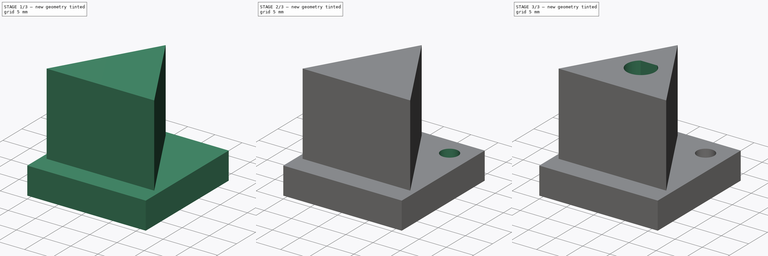
[diagram: build sequence overview — one tinted view per stage of 3, left to right]
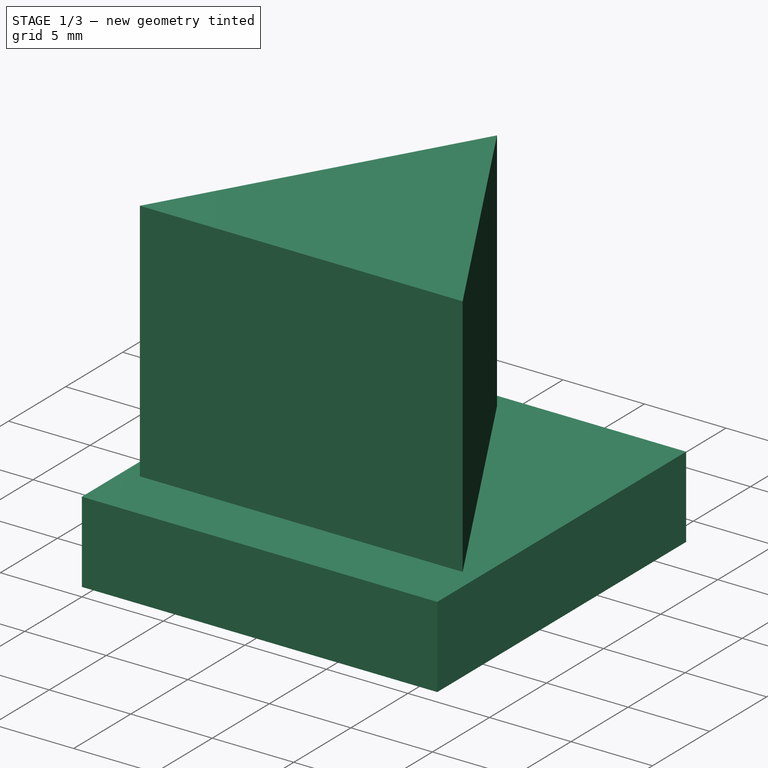
[diagram: stage 1 of 3 — iso view after this stage's code; geometry added in this stage tinted green]
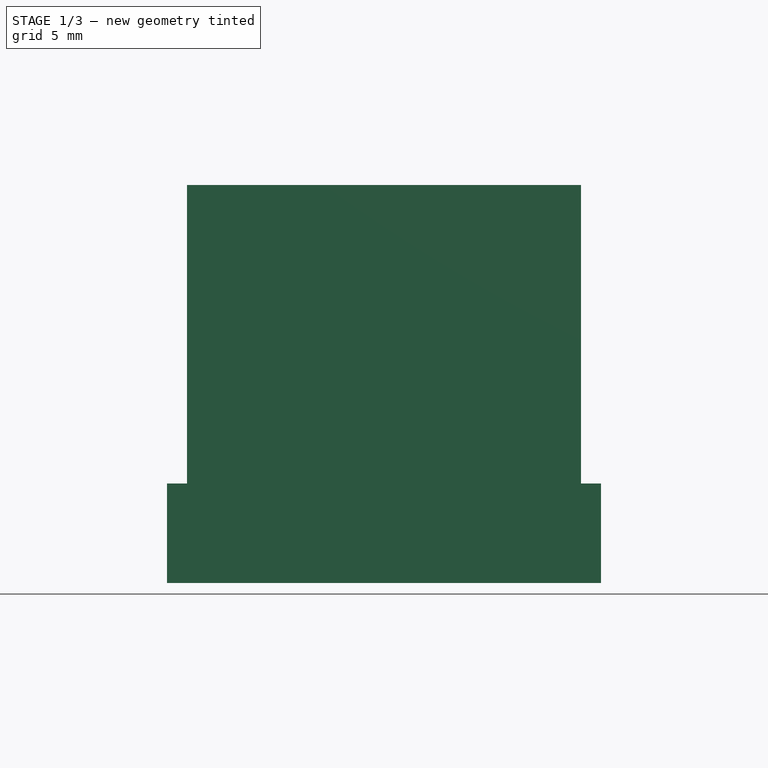
[diagram: stage 1 of 3 — front view after this stage's code; geometry added in this stage tinted green]
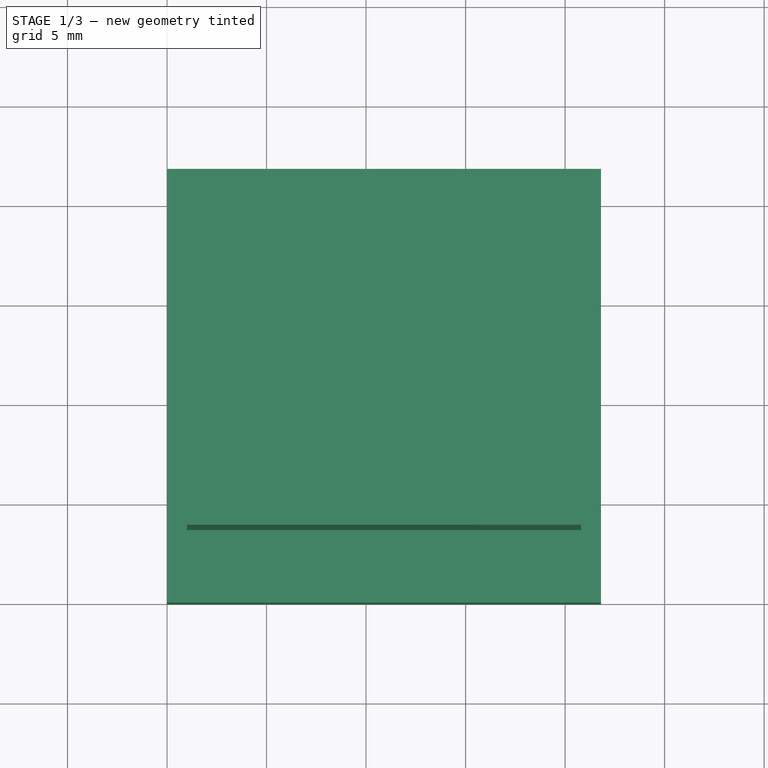
[diagram: stage 1 of 3 — top view after this stage's code; geometry added in this stage tinted green]
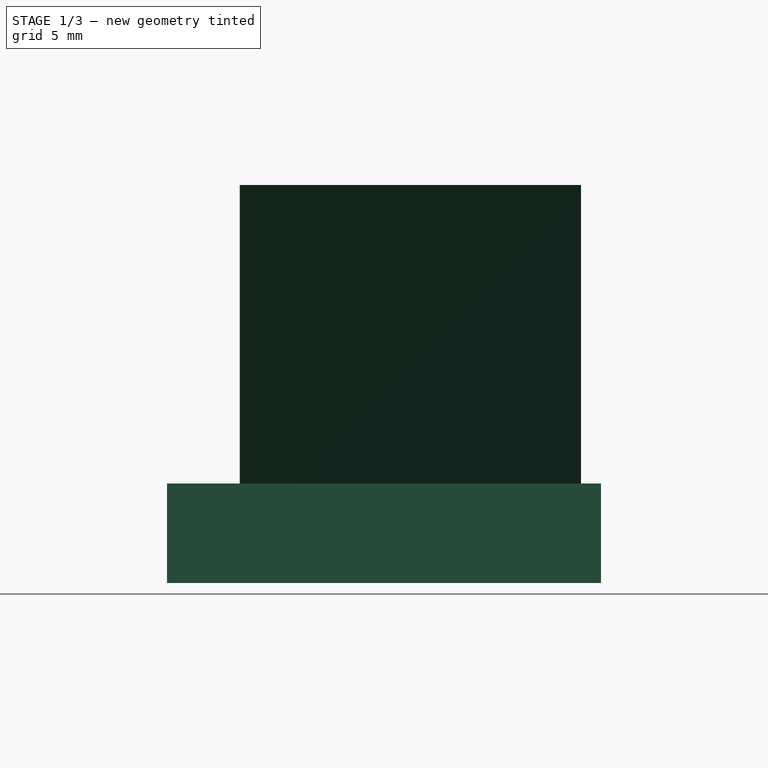
[diagram: stage 1 of 3 — right view after this stage's code; geometry added in this stage tinted green]
FCSTD DOCUMENT  (FreeCAD 0.17R13541 (Git))
Label: hub_v1
License: All rights reserved
LicenseURL: http://en.wikipedia.org/wiki/All_rights_reserved
objects: Sketcher::SketchObject×5, PartDesign::Pocket×3, PartDesign::Pad×2, PartDesign::Body×1
note: 16 computed .brp shape members not serialized (recipe doc carries the construction recipe); baked Part::Feature solids carry a one-line shape summary decoded from their .brp

FEATURE [Sketcher::SketchObject] Sketch
  MapMode = 5
  Support = -> [XY_Plane]
  sketch-geometry (4):
    g0: LineSegment StartX=0 StartY=21.8 StartZ=0 EndX=21.8 EndY=21.8 EndZ=0
    g1: LineSegment StartX=21.8 StartY=21.8 StartZ=0 EndX=21.8 EndY=0 EndZ=0
    g2: LineSegment StartX=21.8 StartY=0 StartZ=0 EndX=0 EndY=0 EndZ=0
    g3: LineSegment StartX=0 StartY=0 StartZ=0 EndX=0 EndY=21.8 EndZ=0
  constraints (11):
    c: Coincident(g0,g1)
    c: Coincident(g1,g2)
    c: Coincident(g2,g3)
    c: Coincident(g3,g0)
    c: Horizontal(g0)
    c: Horizontal(g2)
    c: Vertical(g1)
    c: Vertical(g3)
    c: Equal(g2,g1)
    c: Coincident(g2,g-1)
    c: DistanceY(g1,g1) = 21.8
FEATURE [PartDesign::Pad] Pad
  Length = 5
  Length2 = 100
  Profile = -> Sketch
  Type = 0
FEATURE [Sketcher::SketchObject] Sketch001
  MapMode = 5
  Placement = pos=(0,0,5) rot=(0,0,1;0rad)
  Support = -> [Pad]
  sketch-geometry (3):
    g0: LineSegment StartX=1 StartY=3.6527 StartZ=0 EndX=10.9 EndY=20.8 EndZ=0
    g1: LineSegment StartX=10.9 StartY=20.8 StartZ=0 EndX=20.8 EndY=3.6527 EndZ=0
    g2: LineSegment StartX=20.8 StartY=3.6527 StartZ=0 EndX=1 EndY=3.6527 EndZ=0
  constraints (9):
    c: Coincident(g0,g1)
    c: Coincident(g1,g2)
    c: Coincident(g2,g0)
    c: Horizontal(g2)
    c: Equal(g2,g0)
    c: Equal(g0,g1)
    c: DistanceX(g2,g2) = 19.8
    c: DistanceX(g-1,g0) = 1
    c: DistanceY(g-1,g0) = 20.8
FEATURE [PartDesign::Pad] Pad001
  BaseFeature = -> Pad
  Length = 15
  Length2 = 100
  Profile = -> Sketch001
  Type = 0
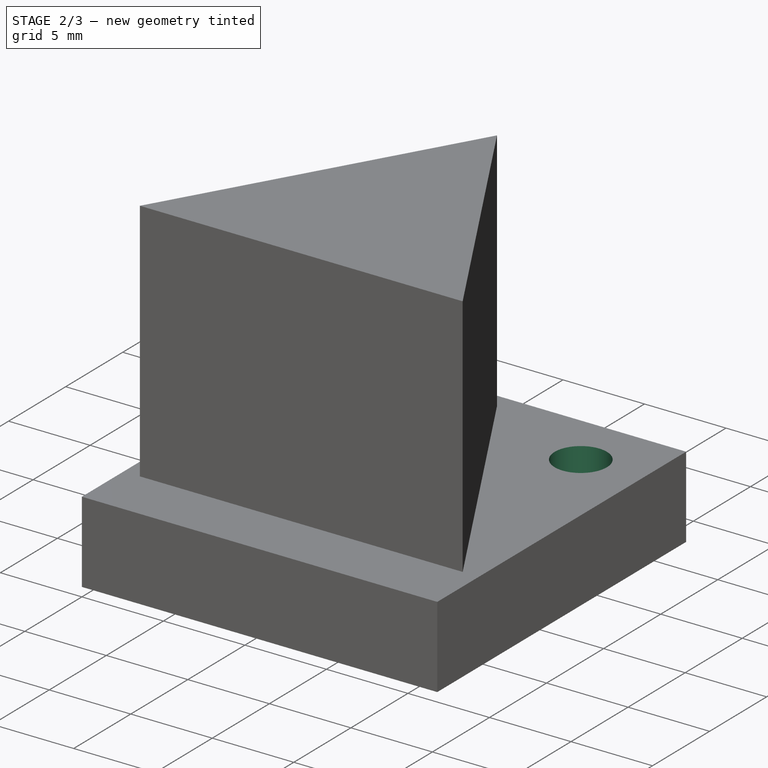
[diagram: stage 2 of 3 — iso view after this stage's code; geometry added in this stage tinted green]
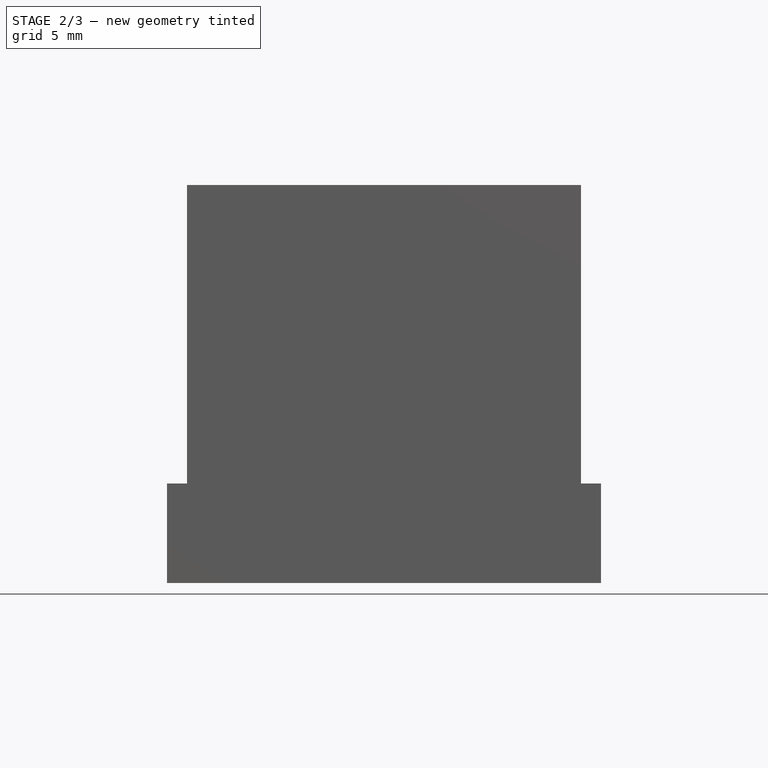
[diagram: stage 2 of 3 — front view after this stage's code; geometry added in this stage tinted green]
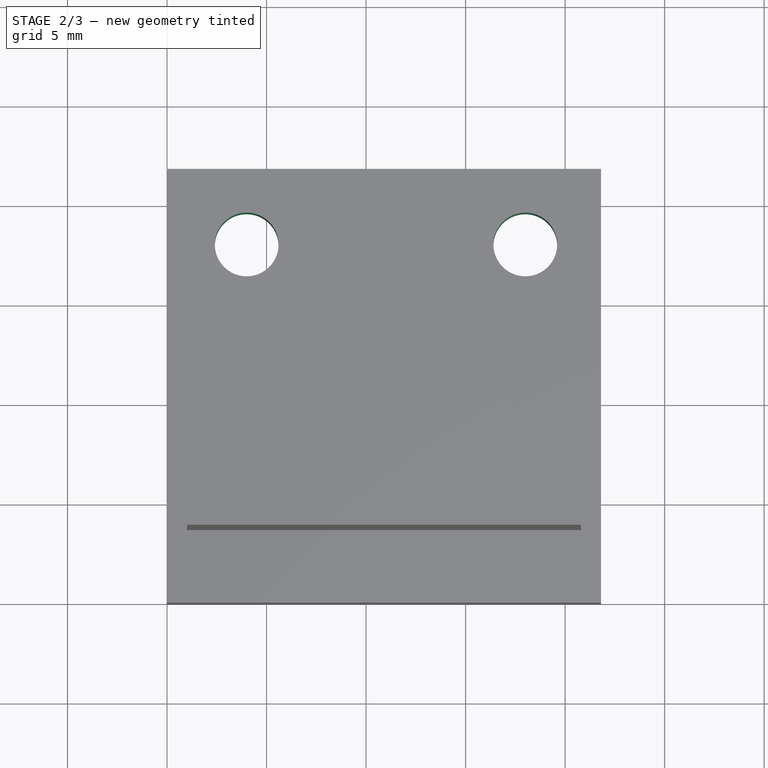
[diagram: stage 2 of 3 — top view after this stage's code; geometry added in this stage tinted green]
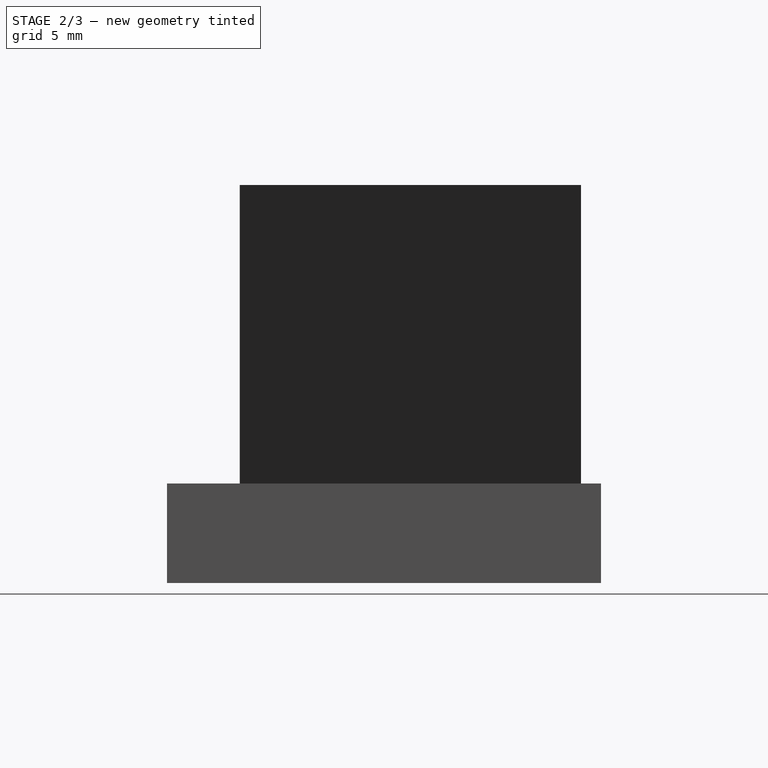
[diagram: stage 2 of 3 — right view after this stage's code; geometry added in this stage tinted green]
FEATURE [Sketcher::SketchObject] Sketch002
  MapMode = 5
  Placement = pos=(0,0,0) rot=(1,0,0;3.14159rad)
  Support = -> [Pad001]
  sketch-geometry (2):
    g0: Circle CenterX=4 CenterY=-18 CenterZ=0 NormalX=0 NormalY=0 NormalZ=1 AngleXU=0 Radius=1.6
    g1: Circle CenterX=18 CenterY=-18 CenterZ=0 NormalX=0 NormalY=0 NormalZ=1 AngleXU=0 Radius=1.6
  constraints (6):
    c: Horizontal(g0,g1)
    c: DistanceX(g0,g1) = 14
    c: DistanceX(g-1,g0) = 4
    c: DistanceY(g0,g-1) = 18
    c: Equal(g0,g1)
    c: Radius(g1) = 1.6
FEATURE [PartDesign::Pocket] Pocket
  BaseFeature = -> Pad001
  Length = 5
  Length2 = 100
  Profile = -> Sketch002
  Type = 1
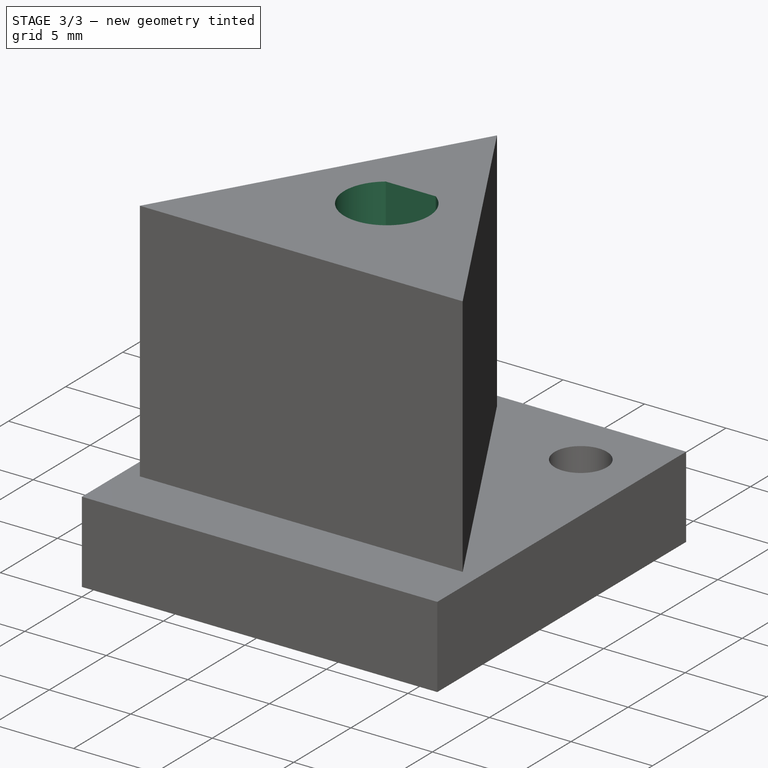
[diagram: stage 3 of 3 — iso view after this stage's code; geometry added in this stage tinted green]
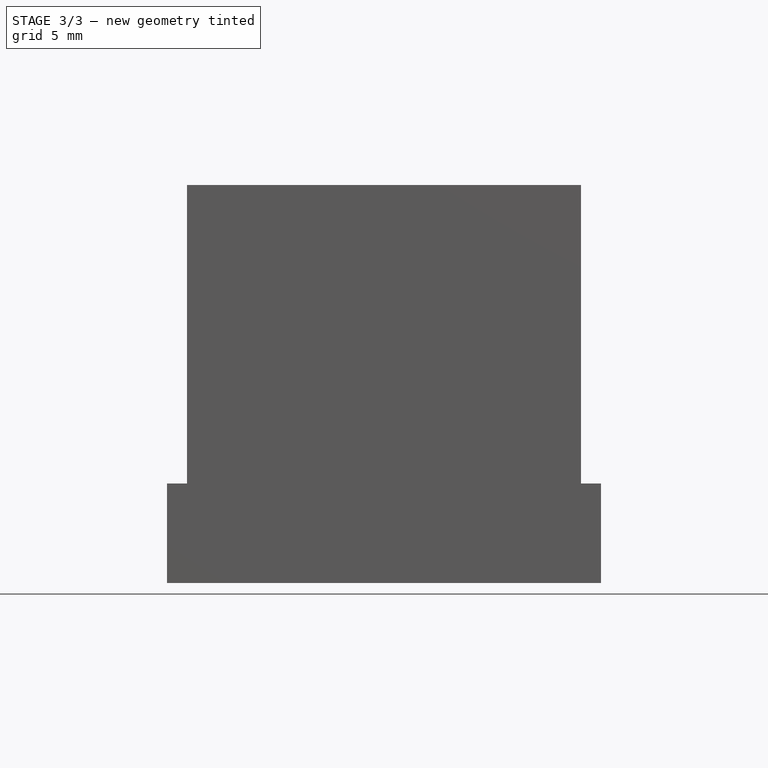
[diagram: stage 3 of 3 — front view after this stage's code; geometry added in this stage tinted green]
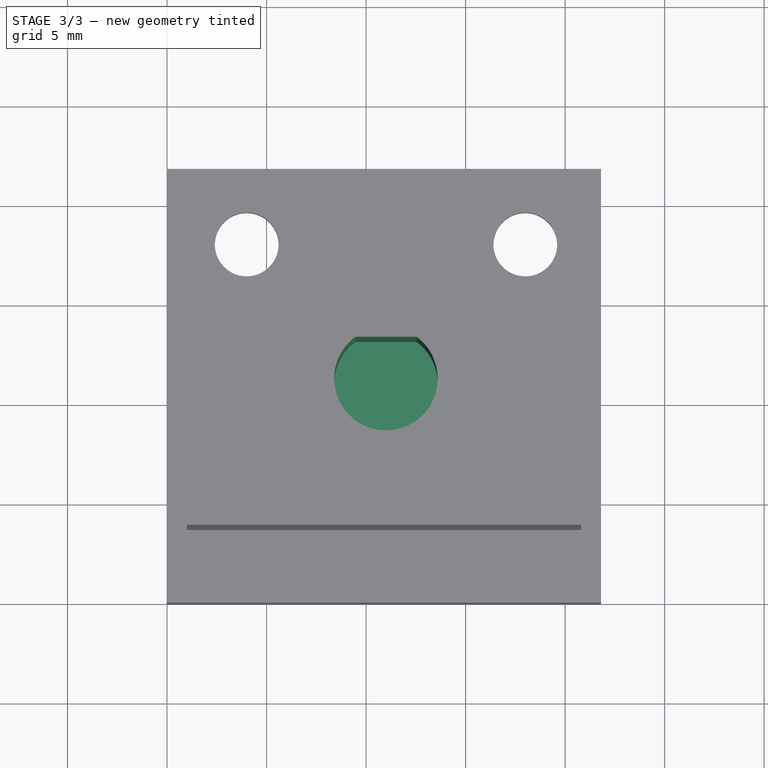
[diagram: stage 3 of 3 — top view after this stage's code; geometry added in this stage tinted green]
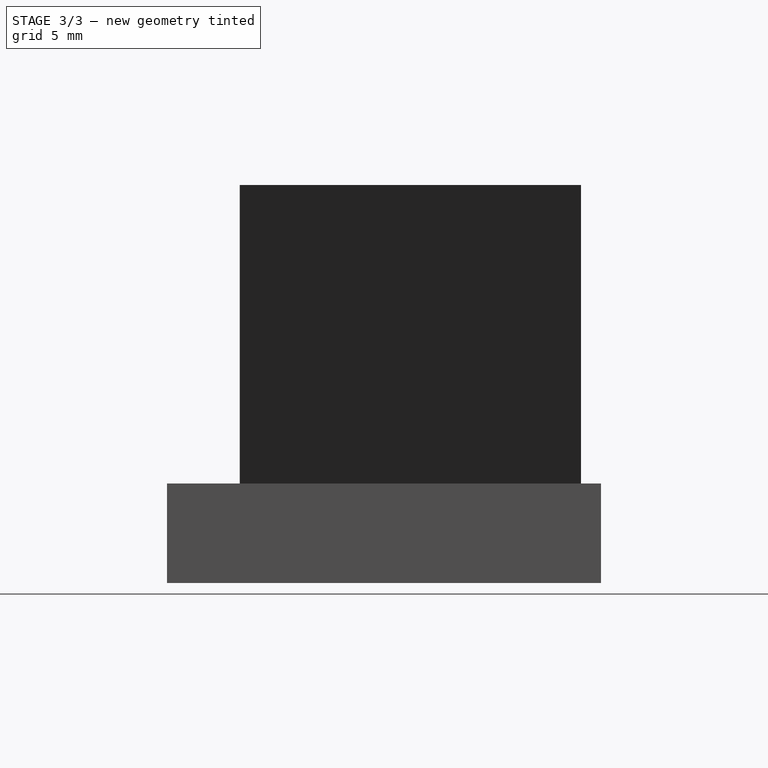
[diagram: stage 3 of 3 — right view after this stage's code; geometry added in this stage tinted green]
FEATURE [Sketcher::SketchObject] Sketch003
  MapMode = 5
  Placement = pos=(0,0,0) rot=(1,0,0;3.14159rad)
  Support = -> [Pocket]
  sketch-geometry (14):
    g0: LineSegment StartX=6.775 StartY=-19.6021 StartZ=0 EndX=6.775 EndY=-16.3979 EndZ=0
    g1: LineSegment StartX=6.775 StartY=-16.3979 StartZ=0 EndX=4 EndY=-14.7957 EndZ=0
    g2: LineSegment StartX=4 StartY=-14.7957 StartZ=0 EndX=1.225 EndY=-16.3979 EndZ=0
    g3: LineSegment StartX=1.225 StartY=-16.3979 StartZ=0 EndX=1.225 EndY=-19.6021 EndZ=0
    g4: LineSegment StartX=1.225 StartY=-19.6021 StartZ=0 EndX=4 EndY=-21.2043 EndZ=0
    g5: LineSegment StartX=4 StartY=-21.2043 StartZ=0 EndX=6.775 EndY=-19.6021 EndZ=0
    g6: Circle [constr] CenterX=4 CenterY=-18 CenterZ=0 NormalX=0 NormalY=0 NormalZ=1 AngleXU=0 Radius=3.20429
    g7: LineSegment StartX=20.775 StartY=-19.6021 StartZ=0 EndX=20.775 EndY=-16.3979 EndZ=0
    g8: LineSegment StartX=20.775 StartY=-16.3979 StartZ=0 EndX=18 EndY=-14.7957 EndZ=0
    g9: LineSegment StartX=18 StartY=-14.7957 StartZ=0 EndX=15.225 EndY=-16.3979 EndZ=0
    g10: LineSegment StartX=15.225 StartY=-16.3979 StartZ=0 EndX=15.225 EndY=-19.6021 EndZ=0
    g11: LineSegment StartX=15.225 StartY=-19.6021 StartZ=0 EndX=18 EndY=-21.2043 EndZ=0
    g12: LineSegment StartX=18 StartY=-21.2043 StartZ=0 EndX=20.775 EndY=-19.6021 EndZ=0
    g13: Circle [constr] CenterX=18 CenterY=-18 CenterZ=0 NormalX=0 NormalY=0 NormalZ=1 AngleXU=0 Radius=3.20429
  constraints (34):
    c: Coincident(g0,g1)
    c: Coincident(g1,g2)
    c: Coincident(g2,g3)
    c: Coincident(g3,g4)
    c: Coincident(g4,g5)
    c: Coincident(g5,g0)
    c: Equal(g0, g1-g5) x5
    c: PointOnObject(g0,g6)
    c: PointOnObject(g1,g6)
    c: PointOnObject(g2,g6)
    c: PointOnObject(g3,g6)
    c: PointOnObject(g4,g6)
    c: PointOnObject(g5,g6)
    c: Coincident(g7,g8)
    c: Coincident(g8,g9)
    c: Coincident(g9,g10)
    c: Coincident(g10,g11)
    c: Coincident(g11,g12)
    c: Coincident(g12,g7)
    c: Equal(g7, g8-g12) x5
    c: PointOnObject(g7,g13)
    c: PointOnObject(g8,g13)
    c: PointOnObject(g9,g13)
    c: PointOnObject(g10,g13)
    c: PointOnObject(g11,g13)
    c: PointOnObject(g12,g13)
    c: Horizontal(g6,g13)
    c: DistanceX(g6,g13) = 14
    c: Vertical(g3)
    c: Vertical(g10)
    c: DistanceX(g2,g0) = 5.55
    c: DistanceX(g9,g7) = 5.55
    c: DistanceX(g-1,g6) = 4
    c: DistanceY(g6,g-1) = 18
FEATURE [PartDesign::Pocket] Pocket001
  BaseFeature = -> Pocket
  Length = 3
  Length2 = 100
  Profile = -> Sketch003
  Type = 0
FEATURE [Sketcher::SketchObject] Sketch004
  MapMode = 5
  Placement = pos=(0,0,20) rot=(0,0,1;0rad)
  Support = -> [Pocket001]
  sketch-geometry (2):
    g0: ArcOfCircle CenterX=11 CenterY=11 CenterZ=0 NormalX=0 NormalY=0 NormalZ=1 AngleXU=0 Radius=2.6 StartAngle=2.20137 EndAngle=7.22341
    g1: LineSegment StartX=9.46703 StartY=13.1 StartZ=0 EndX=12.533 EndY=13.1 EndZ=0
  constraints (7):
    c: Horizontal(g1)
    c: Coincident(g0,g1)
    c: Coincident(g0,g1)
    c: Radius(g0) = 2.6
    c: DistanceY(g0,g0) = 2.1
    c: DistanceX(g-1,g0) = 11
    c: DistanceY(g-1,g0) = 11
FEATURE [PartDesign::Pocket] Pocket002
  BaseFeature = -> Pocket001
  Length = 15
  Length2 = 100
  Profile = -> Sketch004
  Type = 0
FEATURE [PartDesign::Body] Body
  Group = -> [Sketch,Pad,Sketch001,Pad001,Sketch002,Pocket,Sketch003,Pocket001,Sketch004,Pocket002]
  Origin = -> Origin
  Tip = -> Pocket002
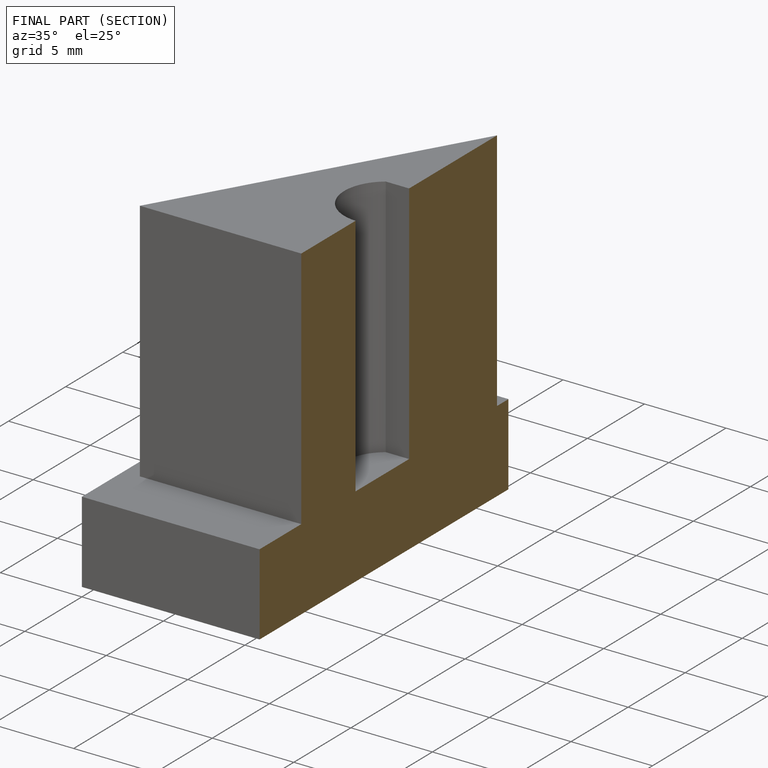
[diagram: finished part — half-section view (interior)]
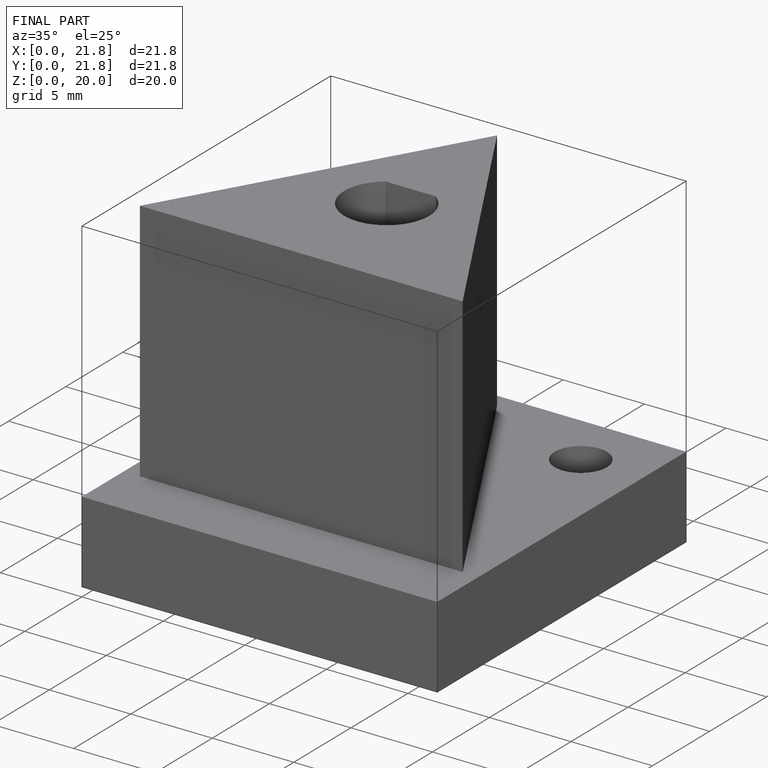
[diagram: finished part — iso view with bounding-box wireframe]
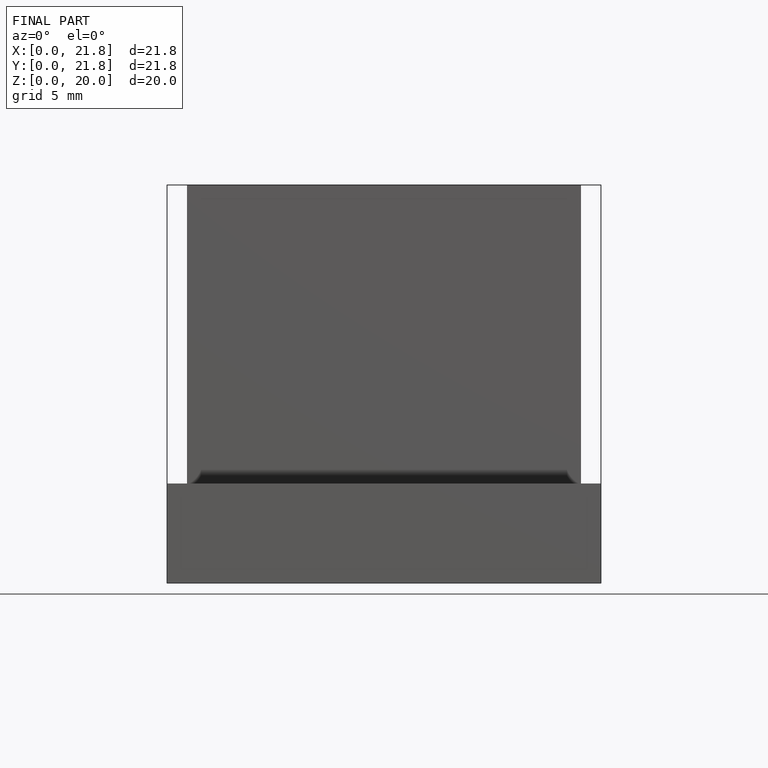
[diagram: finished part — front view with bounding-box wireframe]
